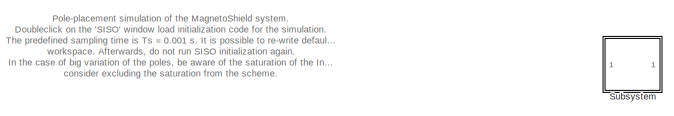
[diagram: root canvas - part 1/2, top left region]
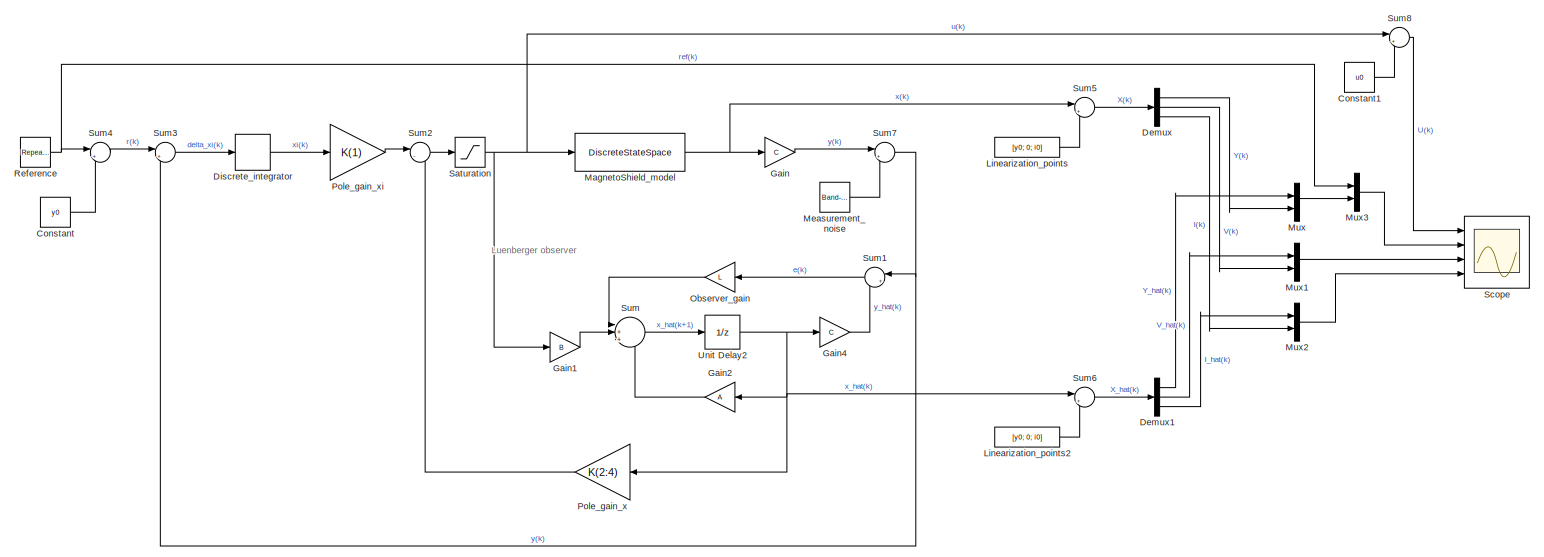
[diagram: root canvas - part 2/2, most of the canvas]
MODEL slx_329f3e00ec89
KIND model
CONFIG AbsTol = auto
CONFIG EnableMultiTasking = off
CONFIG FixedStep = auto
CONFIG MaxStep = auto
CONFIG MinStep = auto
CONFIG RelTol = 1e-3
CONFIG SampleTimeConstraint = Unconstrained
CONFIG Solver = VariableStepAuto
CONFIG SolverName = VariableStepAuto
CONFIG StartTime = 0.0
CONFIG StopTime = 24
BLOCK [Constant] Constant
  Value = y0
BLOCK [Constant] Constant1
  Value = u0
BLOCK [Demux] Demux
  DisplayOption = bar
  Outputs = 3
  Ports = [1, 3]
BLOCK [Demux] Demux1
  DisplayOption = bar
  Outputs = 3
  Ports = [1, 3]
BLOCK [DiscreteIntegrator] Discrete_integrator
  ICPrevOutput = DiscIntNeverNeededParam
  ICPrevScaledInput = DiscIntNeverNeededParam
  InitialConditionSetting = Auto
  IntegratorMethod = Accumulation: Forward Euler
  LimitOutput = on
  LowerSaturationLimit = -1
  Ports = [1, 1]
  SampleTime = Ts
  UpperSaturationLimit = 1
BLOCK [Gain] Gain
  Gain = C
  Multiplication = Matrix(K*u)
  OutDataTypeStr = Inherit: Inherit via internal rule
  ParamDataTypeStr = Inherit: Inherit via internal rule
  SaturateOnIntegerOverflow = off
BLOCK [Gain] Gain1
  Gain = B
  Multiplication = Matrix(K*u)
  OutDataTypeStr = Inherit: Inherit via internal rule
  ParamDataTypeStr = Inherit: Inherit via internal rule
  SaturateOnIntegerOverflow = off
BLOCK [Gain] Gain2
  Gain = A
  Multiplication = Matrix(K*u)
  OutDataTypeStr = Inherit: Inherit via internal rule
  ParamDataTypeStr = Inherit: Inherit via internal rule
  SaturateOnIntegerOverflow = off
BLOCK [Gain] Gain4
  Gain = C
  Multiplication = Matrix(K*u)
  OutDataTypeStr = Inherit: Inherit via internal rule
  ParamDataTypeStr = Inherit: Inherit via internal rule
  SaturateOnIntegerOverflow = off
BLOCK [Constant] Linearization_points
  Value = [y0; 0; i0]
BLOCK [Constant] Linearization_points2
  Value = [y0; 0; i0]
BLOCK [DiscreteStateSpace] MagnetoShield_model
  A = A
  B = B
  C = [1 0 0;0 1 0;0 0 1]
  D = [0;0;0]
  InitialCondition = [0.017-y0;0;0-i0]
  SampleTime = Ts
BLOCK [Reference] Measurement_noise  REF=simulink/Sources/Band-Limited
White Noise
  Ports = [0, 1]
  SourceBlock = simulink/Sources/Band-Limited\nWhite Noise
  SourceProductBaseCode = SL
  SourceType = Band-Limited White Noise.
BLOCK [Mux] Mux
  DisplayOption = bar
  Inputs = 2
  Ports = [2, 1]
BLOCK [Mux] Mux1
  DisplayOption = bar
  Inputs = 2
  Ports = [2, 1]
BLOCK [Mux] Mux2
  DisplayOption = bar
  Inputs = 2
  Ports = [2, 1]
BLOCK [Mux] Mux3
  DisplayOption = bar
  Inputs = 2
  Ports = [2, 1]
BLOCK [Gain] Observer_gain
  Gain = L
  Multiplication = Matrix(K*u)
  OutDataTypeStr = Inherit: Inherit via internal rule
  ParamDataTypeStr = Inherit: Inherit via internal rule
  SaturateOnIntegerOverflow = off
BLOCK [Gain] Pole_gain_x
  Gain = K(2:4)
  Multiplication = Matrix(K*u)
  OutDataTypeStr = Inherit: Inherit via internal rule
  ParamDataTypeStr = Inherit: Inherit via internal rule
  SaturateOnIntegerOverflow = off
BLOCK [Gain] Pole_gain_xi
  Gain = K(1)
  Multiplication = Matrix(K*u)
  OutDataTypeStr = Inherit: Inherit via internal rule
  ParamDataTypeStr = Inherit: Inherit via internal rule
  SaturateOnIntegerOverflow = off
BLOCK [Reference] Reference  REF=simulink/Sources/Repeating
Sequence
Stair
  Ports = [0, 1]
  SourceBlock = simulink/Sources/Repeating\nSequence\nStair
  SourceProductBaseCode = SL
  SourceType = Repeating Sequence Stair
BLOCK [Saturate] Saturation
  InputPortMap = u0
  LowerLimit = 0-u0
  Ports = [1, 1]
  UpperLimit = 12-u0
BLOCK [Scope] Scope
  Floating = off
  NumInputPorts = 4
  Ports = [4]
  ScopeSpecificationString = Simulink.scopes.TimeScopeBlockCfg('CurrentConfiguration', extmgr.ConfigurationSet(extmgr.Configuration('Core','General UI',true),extmgr.Configuration('Core','Source UI',true),extmgr.Configuration('Sources','WiredSimulink',true,'DataLoggingVariableName','ScopeData5','DataLoggingSaveFormat','StructureWithTime'),extmgr.Configuration('Visuals','Time Domain',true,'SerializedDisplays',{struct('MinYLimRe...<+3792ch>
BLOCK [SubSystem] Subsystem
  OpenFcn = clear;close all;clc;\ncd(fileparts(which(gcs)));\nload '../../../matlab/examples/MagnetoShield/MagnetoShield_Models_Greybox_SS';\n%% MagnetoShield - Pole-placement simulation and control initialization for Simulink\nTs = 0.0015;                   % Sampling of the Simulink simulation\n\n% Matrices extraction from model\nmodeld=c2d(model,Ts);           % Discretized linear state-space model\nA = modeld.a; ...<+912ch>
  Ports = []
  RequestExecContextInheritance = off
BLOCK [Sum] Sum
  IconShape = round
  InputSameDT = off
  Inputs = |+++
  OutDataTypeStr = Inherit: Inherit via internal rule
  Ports = [3, 1]
  SaturateOnIntegerOverflow = off
BLOCK [Sum] Sum1
  IconShape = round
  InputSameDT = off
  Inputs = |+-
  OutDataTypeStr = Inherit: Inherit via internal rule
  Ports = [2, 1]
  SaturateOnIntegerOverflow = off
BLOCK [Sum] Sum2
  IconShape = round
  InputSameDT = off
  Inputs = |--
  OutDataTypeStr = Inherit: Inherit via internal rule
  Ports = [2, 1]
  SaturateOnIntegerOverflow = off
BLOCK [Sum] Sum3
  IconShape = round
  InputSameDT = off
  Inputs = |+-
  OutDataTypeStr = Inherit: Inherit via internal rule
  Ports = [2, 1]
  SaturateOnIntegerOverflow = off
BLOCK [Sum] Sum4
  IconShape = round
  InputSameDT = off
  Inputs = |+-
  OutDataTypeStr = Inherit: Inherit via internal rule
  Ports = [2, 1]
  SaturateOnIntegerOverflow = off
BLOCK [Sum] Sum5
  IconShape = round
  InputSameDT = off
  Inputs = |++
  OutDataTypeStr = Inherit: Inherit via internal rule
  Ports = [2, 1]
  SaturateOnIntegerOverflow = off
BLOCK [Sum] Sum6
  IconShape = round
  InputSameDT = off
  Inputs = |++
  OutDataTypeStr = Inherit: Inherit via internal rule
  Ports = [2, 1]
  SaturateOnIntegerOverflow = off
BLOCK [Sum] Sum7
  IconShape = round
  InputSameDT = off
  Inputs = |++
  OutDataTypeStr = Inherit: Inherit via internal rule
  Ports = [2, 1]
  SaturateOnIntegerOverflow = off
BLOCK [Sum] Sum8
  IconShape = round
  InputSameDT = off
  Inputs = |++
  OutDataTypeStr = Inherit: Inherit via internal rule
  Ports = [2, 1]
  SaturateOnIntegerOverflow = off
BLOCK [UnitDelay] Unit Delay2
  HasFrameUpgradeWarning = on
  InitialCondition = [0.017-y0;0;0-i0]
  SampleTime = -1
ANNOTATION (root): Pole-placement simulation of the MagnetoShield system. Doubleclick on the 'SISO' window load initialization code for the simulation. The predefined sampling time is Ts = 0.001 s. It is possible to re-write default values in the workspace. Afterwards, do not run SISO initialization again. In the case of big variation of the poles, be aware of the saturation of the Input. In that case, consider excl...<+37ch>
ANNOTATION (root): Luenberger observer
LINE Constant1:1 -> Sum8:2
LINE Constant:1 -> Sum4:2
LINE Demux1:1 -> Mux:1
LINE Demux1:2 -> Mux1:1
LINE Demux1:3 -> Mux2:1
LINE Demux:1 -> Mux:2
LINE Demux:2 -> Mux1:2
LINE Demux:3 -> Mux2:2
LINE Discrete_integrator:1 -> Pole_gain_xi:1
LINE Gain1:1 -> Sum:2
LINE Gain2:1 -> Sum:3
LINE Gain4:1 -> Sum1:2
LINE Gain:1 -> Sum7:1
LINE Linearization_points2:1 -> Sum6:2
LINE Linearization_points:1 -> Sum5:2
NET MagnetoShield_model:1 -> Gain:1, Sum5:1
LINE Measurement_noise:1 -> Sum7:2
LINE Mux1:1 -> Scope:3
LINE Mux2:1 -> Scope:4
LINE Mux3:1 -> Scope:2
LINE Mux:1 -> Mux3:2
LINE Observer_gain:1 -> Sum:1
LINE Pole_gain_x:1 -> Sum2:2
LINE Pole_gain_xi:1 -> Sum2:1
NET Reference:1 -> Mux3:1, Sum4:1
NET Saturation:1 -> Gain1:1, MagnetoShield_model:1, Sum8:1
LINE Sum1:1 -> Observer_gain:1
LINE Sum2:1 -> Saturation:1
LINE Sum3:1 -> Discrete_integrator:1
LINE Sum4:1 -> Sum3:1
LINE Sum5:1 -> Demux:1
LINE Sum6:1 -> Demux1:1
NET Sum7:1 -> Sum1:1, Sum3:2
LINE Sum8:1 -> Scope:1
LINE Sum:1 -> Unit Delay2:1
NET Unit Delay2:1 -> Gain2:1, Gain4:1, Pole_gain_x:1, Sum6:1
note: NET lines group one-source signal fan-out (src -> all destinations, sorted); 1:1 wires keep LINE
